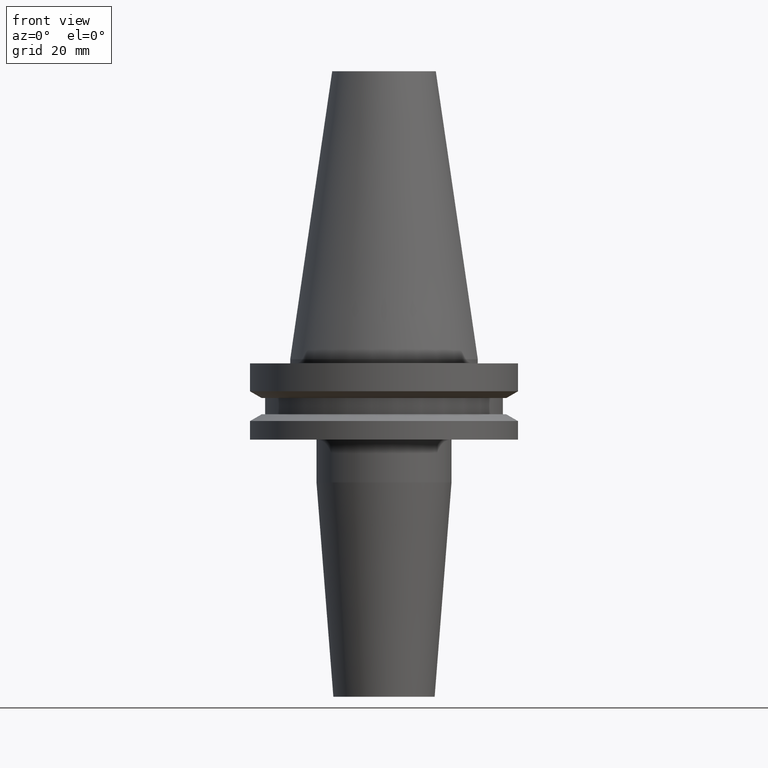
[diagram: clean part render]
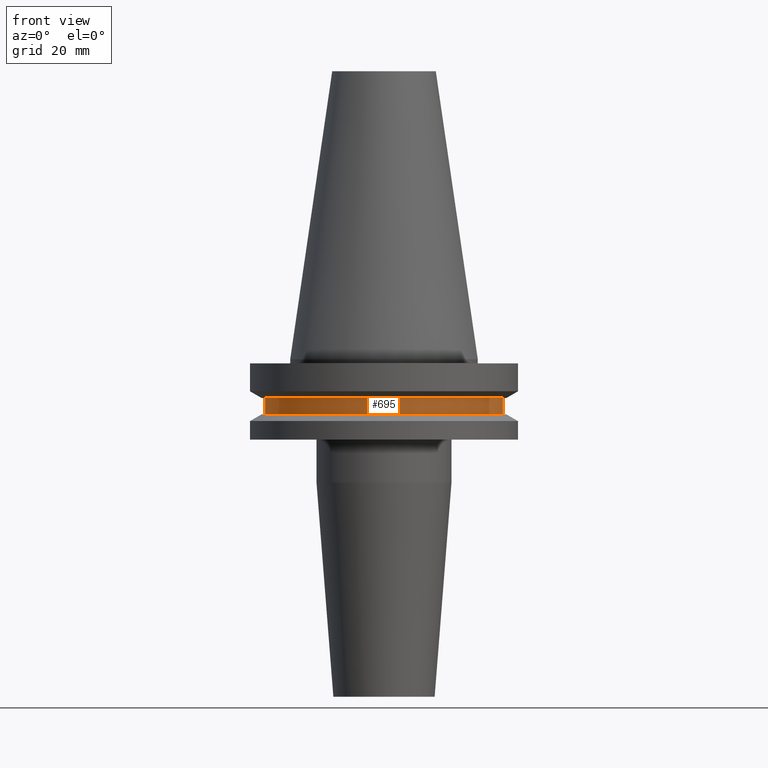
[diagram: same view with one face highlighted and labeled with its STEP entity id]
A machine part, front view. The second image highlights one B-rep face of the part: STEP entity #695.
In plain terms, the highlighted cylindrical surface (partial cylindrical patch) has radius 28.18 mm, axis along (-0, -0, 1).
Its self-contained STEP definition (entity closure, byte-faithful):
#6 = VERTEX_POINT ( 'NONE', #38 ) ;
#19 = CIRCLE ( 'NONE', #263, 28.17999999999999972 ) ;
#38 = CARTESIAN_POINT ( 'NONE',  ( -28.17999999999999972, 3.451054679997241634E-15, -9.204999999999991189 ) ) ;
#69 = LINE ( 'NONE', #345, #731 ) ;
#91 = CARTESIAN_POINT ( 'NONE',  ( 0.000000000000000000, 0.000000000000000000, -13.05499999999999794 ) ) ;
#99 = EDGE_LOOP ( 'NONE', ( #633, #265, #651, #163 ) ) ;
#115 = EDGE_CURVE ( 'NONE', #618, #667, #732, .T. ) ;
#128 = DIRECTION ( 'NONE',  ( -0.000000000000000000, -0.000000000000000000, 1.000000000000000000 ) ) ;
#160 = CYLINDRICAL_SURFACE ( 'NONE', #328, 28.17999999999999972 ) ;
#163 = ORIENTED_EDGE ( 'NONE', *, *, #747, .F. ) ;
#166 = CARTESIAN_POINT ( 'NONE',  ( 28.17999999999999972, 0.000000000000000000, -13.05499999999999794 ) ) ;
#191 = CARTESIAN_POINT ( 'NONE',  ( 0.000000000000000000, 0.000000000000000000, -9.204999999999991189 ) ) ;
#216 = DIRECTION ( 'NONE',  ( 1.000000000000000000, 0.000000000000000000, 0.000000000000000000 ) ) ;
#248 = CARTESIAN_POINT ( 'NONE',  ( -28.17999999999999972, 3.451054679997241634E-15, -13.05499999999999794 ) ) ;
#263 = AXIS2_PLACEMENT_3D ( 'NONE', #191, #128, #720 ) ;
#265 = ORIENTED_EDGE ( 'NONE', *, *, #449, .T. ) ;
#290 = EDGE_CURVE ( 'NONE', #709, #6, #69, .T. ) ;
#328 = AXIS2_PLACEMENT_3D ( 'NONE', #766, #339, #216 ) ;
#339 = DIRECTION ( 'NONE',  ( -0.000000000000000000, -0.000000000000000000, 1.000000000000000000 ) ) ;
#340 = CARTESIAN_POINT ( 'NONE',  ( 28.17999999999999972, 0.000000000000000000, 68.25000000000000000 ) ) ;
#345 = CARTESIAN_POINT ( 'NONE',  ( -28.17999999999999972, 3.451054679997241634E-15, 68.25000000000000000 ) ) ;
#348 = DIRECTION ( 'NONE',  ( -0.000000000000000000, -0.000000000000000000, 1.000000000000000000 ) ) ;
#393 = DIRECTION ( 'NONE',  ( -0.000000000000000000, -0.000000000000000000, 1.000000000000000000 ) ) ;
#449 = EDGE_CURVE ( 'NONE', #709, #618, #496, .T. ) ;
#496 = CIRCLE ( 'NONE', #692, 28.17999999999999972 ) ;
#522 = FACE_OUTER_BOUND ( 'NONE', #99, .T. ) ;
#548 = DIRECTION ( 'NONE',  ( -0.000000000000000000, -0.000000000000000000, 1.000000000000000000 ) ) ;
#618 = VERTEX_POINT ( 'NONE', #166 ) ;
#633 = ORIENTED_EDGE ( 'NONE', *, *, #290, .F. ) ;
#648 = CARTESIAN_POINT ( 'NONE',  ( 28.17999999999999972, 0.000000000000000000, -9.204999999999991189 ) ) ;
#651 = ORIENTED_EDGE ( 'NONE', *, *, #115, .T. ) ;
#667 = VERTEX_POINT ( 'NONE', #648 ) ;
#692 = AXIS2_PLACEMENT_3D ( 'NONE', #91, #548, #697 ) ;
#695 = ADVANCED_FACE ( 'NONE', ( #522 ), #160, .T. ) ;
#697 = DIRECTION ( 'NONE',  ( 1.000000000000000000, 0.000000000000000000, 0.000000000000000000 ) ) ;
#709 = VERTEX_POINT ( 'NONE', #248 ) ;
#720 = DIRECTION ( 'NONE',  ( 1.000000000000000000, 0.000000000000000000, 0.000000000000000000 ) ) ;
#731 = VECTOR ( 'NONE', #348, 1000.000000000000000 ) ;
#732 = LINE ( 'NONE', #340, #735 ) ;
#735 = VECTOR ( 'NONE', #393, 1000.000000000000000 ) ;
#747 = EDGE_CURVE ( 'NONE', #6, #667, #19, .T. ) ;
#766 = CARTESIAN_POINT ( 'NONE',  ( 0.000000000000000000, 0.000000000000000000, 68.25000000000000000 ) ) ;